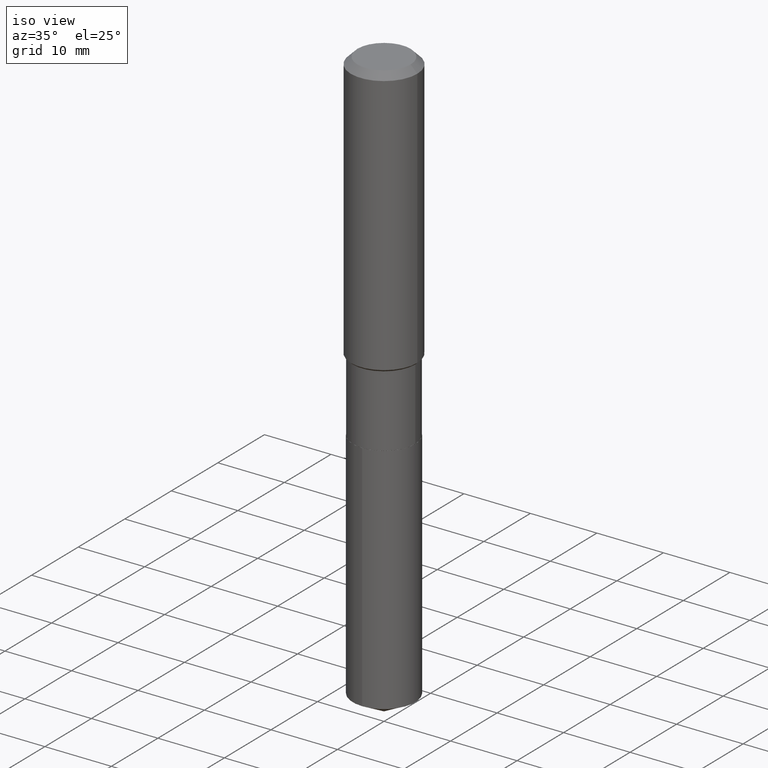
[diagram: clean part render]
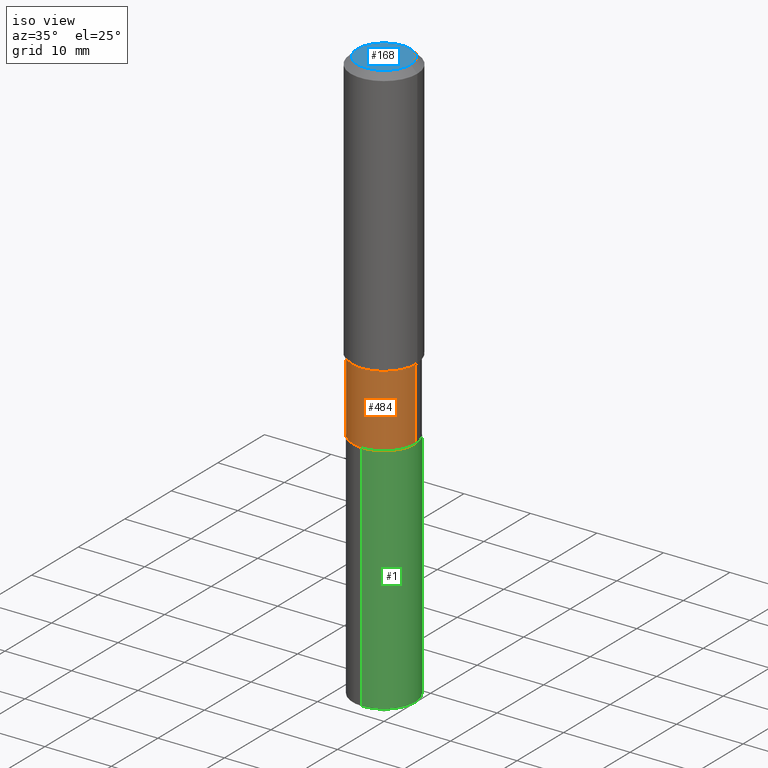
[diagram: same view with three faces highlighted in distinct colors, each labeled with its STEP entity id]
A machine part, iso view with three faces highlighted in distinct colors.
Their STEP definitions:

[orange] entity #484 — the highlighted cylindrical surface (partial cylindrical patch) has radius 4.7003 mm, axis along (-0, 0, 1).
#2 = DIRECTION ( 'NONE',  ( -2.445468806185136877E-29, 3.491481338843145188E-15, 1.000000000000000000 ) ) ;
#3 = FACE_OUTER_BOUND ( 'NONE', #143, .T. ) ;
#5 = AXIS2_PLACEMENT_3D ( 'NONE', #405, #36, #151 ) ;
#14 = DIRECTION ( 'NONE',  ( -2.445468806185136597E-29, 3.491481338843145583E-15, 1.000000000000000000 ) ) ;
#25 = CARTESIAN_POINT ( 'NONE',  ( -0.1850499999999999368, 1.314859332524064945E-15, -9.102489384516700747E-30 ) ) ;
#36 = DIRECTION ( 'NONE',  ( -2.445468806185136597E-29, 3.491481338843145583E-15, 1.000000000000000000 ) ) ;
#44 = CARTESIAN_POINT ( 'NONE',  ( 3.907859152283848022E-29, -5.579387179471346287E-15, -1.597999999999999643 ) ) ;
#52 = EDGE_CURVE ( 'NONE', #472, #109, #397, .T. ) ;
#65 = ORIENTED_EDGE ( 'NONE', *, *, #144, .T. ) ;
#70 = EDGE_CURVE ( 'NONE', #109, #279, #333, .T. ) ;
#109 = VERTEX_POINT ( 'NONE', #384 ) ;
#116 = DIRECTION ( 'NONE',  ( -2.445468806185136597E-29, 3.491481338843145583E-15, 1.000000000000000000 ) ) ;
#143 = EDGE_LOOP ( 'NONE', ( #362, #65, #399, #344 ) ) ;
#144 = EDGE_CURVE ( 'NONE', #472, #436, #345, .T. ) ;
#151 = DIRECTION ( 'NONE',  ( 1.000000000000000000, -6.982962677686267499E-15, 0.000000000000000000 ) ) ;
#189 = DIRECTION ( 'NONE',  ( -2.445468806185136877E-29, 3.491481338843145188E-15, 1.000000000000000000 ) ) ;
#191 = AXIS2_PLACEMENT_3D ( 'NONE', #256, #116, #255 ) ;
#205 = AXIS2_PLACEMENT_3D ( 'NONE', #44, #14, #420 ) ;
#245 = CARTESIAN_POINT ( 'NONE',  ( 0.1850499999999999090, -6.871584422977188194E-15, -1.597999999999999643 ) ) ;
#255 = DIRECTION ( 'NONE',  ( 1.000000000000000000, -6.982962677686267499E-15, 4.876176775795935793E-29 ) ) ;
#256 = CARTESIAN_POINT ( 'NONE',  ( 0.000000000000000000, 0.000000000000000000, 0.000000000000000000 ) ) ;
#279 = VERTEX_POINT ( 'NONE', #245 ) ;
#333 = CIRCLE ( 'NONE', #205, 0.1850499999999999090 ) ;
#344 = ORIENTED_EDGE ( 'NONE', *, *, #70, .F. ) ;
#345 = CIRCLE ( 'NONE', #5, 0.1850499999999999923 ) ;
#361 = CARTESIAN_POINT ( 'NONE',  ( -0.1850499999999999923, -5.006642205518390514E-15, -2.023099999999999898 ) ) ;
#362 = ORIENTED_EDGE ( 'NONE', *, *, #52, .F. ) ;
#370 = CARTESIAN_POINT ( 'NONE',  ( 0.1850499999999999368, -1.292197243505843287E-15, 9.023365123610376264E-30 ) ) ;
#384 = CARTESIAN_POINT ( 'NONE',  ( -0.1850499999999999090, -5.006642205518391303E-15, -1.597999999999999643 ) ) ;
#397 = LINE ( 'NONE', #25, #442 ) ;
#399 = ORIENTED_EDGE ( 'NONE', *, *, #401, .T. ) ;
#401 = EDGE_CURVE ( 'NONE', #436, #279, #418, .T. ) ;
#405 = CARTESIAN_POINT ( 'NONE',  ( 4.947427941793149075E-29, -7.063615896613566997E-15, -2.023099999999999898 ) ) ;
#410 = CYLINDRICAL_SURFACE ( 'NONE', #191, 0.1850499999999999368 ) ;
#413 = CARTESIAN_POINT ( 'NONE',  ( 0.1850499999999999923, -8.355813140119411270E-15, -2.023099999999999898 ) ) ;
#418 = LINE ( 'NONE', #370, #475 ) ;
#420 = DIRECTION ( 'NONE',  ( 1.000000000000000000, -6.982962677686265133E-15, 0.000000000000000000 ) ) ;
#436 = VERTEX_POINT ( 'NONE', #413 ) ;
#442 = VECTOR ( 'NONE', #2, 39.37007874015748143 ) ;
#472 = VERTEX_POINT ( 'NONE', #361 ) ;
#475 = VECTOR ( 'NONE', #189, 39.37007874015748143 ) ;
#484 = ADVANCED_FACE ( 'NONE', ( #3 ), #410, .T. ) ;

[blue] entity #168 — the highlighted planar face has unit normal (0, -0, -1).
#6 = AXIS2_PLACEMENT_3D ( 'NONE', #104, #395, #252 ) ;
#10 = PLANE ( 'NONE',  #28 ) ;
#28 = AXIS2_PLACEMENT_3D ( 'NONE', #95, #457, #304 ) ;
#31 = EDGE_LOOP ( 'NONE', ( #308, #482 ) ) ;
#55 = CARTESIAN_POINT ( 'NONE',  ( -0.1574800000000000089, 1.168406772637159618E-15, 3.855188123707939751E-18 ) ) ;
#95 = CARTESIAN_POINT ( 'NONE',  ( -4.713871149261283817E-47, 6.730158695841841775E-33, 1.927594061857935365E-18 ) ) ;
#104 = CARTESIAN_POINT ( 'NONE',  ( -9.427742298522567634E-47, 1.346031739168368355E-32, 3.855188123715870730E-18 ) ) ;
#113 = DIRECTION ( 'NONE',  ( 1.000000000000000000, -6.982962677686265922E-15, 4.876223630392693006E-29 ) ) ;
#168 = ADVANCED_FACE ( 'NONE', ( #465 ), #10, .F. ) ;
#173 = DIRECTION ( 'NONE',  ( -2.445468806185136597E-29, 3.491481338843145583E-15, 1.000000000000000000 ) ) ;
#182 = CARTESIAN_POINT ( 'NONE',  ( -9.427742298522567634E-47, 1.346031739168368355E-32, 3.855188123715870730E-18 ) ) ;
#210 = VERTEX_POINT ( 'NONE', #342 ) ;
#240 = AXIS2_PLACEMENT_3D ( 'NONE', #182, #173, #113 ) ;
#246 = VERTEX_POINT ( 'NONE', #55 ) ;
#252 = DIRECTION ( 'NONE',  ( 1.000000000000000000, -6.982962677686265922E-15, 4.876223630392693006E-29 ) ) ;
#260 = EDGE_CURVE ( 'NONE', #246, #210, #450, .T. ) ;
#302 = EDGE_CURVE ( 'NONE', #210, #246, #453, .T. ) ;
#304 = DIRECTION ( 'NONE',  ( -1.000000000000000000, 6.982962677686265922E-15, -4.876176775795935793E-29 ) ) ;
#308 = ORIENTED_EDGE ( 'NONE', *, *, #260, .T. ) ;
#342 = CARTESIAN_POINT ( 'NONE',  ( 0.1574800000000000089, -1.284169937930321189E-15, 3.855188123724205385E-18 ) ) ;
#395 = DIRECTION ( 'NONE',  ( -2.445468806185136597E-29, 3.491481338843145583E-15, 1.000000000000000000 ) ) ;
#450 = CIRCLE ( 'NONE', #6, 0.1574800000000000089 ) ;
#453 = CIRCLE ( 'NONE', #240, 0.1574800000000000089 ) ;
#457 = DIRECTION ( 'NONE',  ( 2.438088387897960049E-29, -3.491481338843145188E-15, -1.000000000000000000 ) ) ;
#465 = FACE_OUTER_BOUND ( 'NONE', #31, .T. ) ;
#482 = ORIENTED_EDGE ( 'NONE', *, *, #302, .T. ) ;

[green] entity #1 — the highlighted cylindrical surface (partial cylindrical patch) has radius 4.7003 mm, axis along (-0, 0, 1).
#1 = ADVANCED_FACE ( 'NONE', ( #170 ), #181, .T. ) ;
#13 = LINE ( 'NONE', #299, #365 ) ;
#20 = VERTEX_POINT ( 'NONE', #438 ) ;
#24 = EDGE_LOOP ( 'NONE', ( #359, #310, #61, #440 ) ) ;
#26 = DIRECTION ( 'NONE',  ( -2.445517431145861124E-29, 3.491411705131827095E-15, 1.000000000000000000 ) ) ;
#37 = VECTOR ( 'NONE', #179, 39.37007874015748143 ) ;
#61 = ORIENTED_EDGE ( 'NONE', *, *, #459, .F. ) ;
#79 = DIRECTION ( 'NONE',  ( -6.982962677686265133E-15, -1.000000000000000000, 2.952551195530141356E-15 ) ) ;
#85 = EDGE_CURVE ( 'NONE', #138, #466, #13, .T. ) ;
#128 = CARTESIAN_POINT ( 'NONE',  ( -1.292197243505793786E-15, -0.1850500000000070422, -2.023599999999999177 ) ) ;
#133 = DIRECTION ( 'NONE',  ( -2.445517431145861124E-29, 3.491411705131827095E-15, 1.000000000000000000 ) ) ;
#138 = VERTEX_POINT ( 'NONE', #483 ) ;
#141 = CARTESIAN_POINT ( 'NONE',  ( 1.314859332524148564E-15, 0.1850499999999929146, -2.023600000000000065 ) ) ;
#153 = CARTESIAN_POINT ( 'NONE',  ( 4.948650676196241876E-29, -7.065361637282988500E-15, -2.023599999999999621 ) ) ;
#170 = FACE_OUTER_BOUND ( 'NONE', #24, .T. ) ;
#175 = EDGE_CURVE ( 'NONE', #20, #138, #334, .T. ) ;
#178 = DIRECTION ( 'NONE',  ( -6.982962677686265133E-15, -1.000000000000000000, 2.952551195530141356E-15 ) ) ;
#179 = DIRECTION ( 'NONE',  ( -2.445517431145861124E-29, 3.491411705131826701E-15, 1.000000000000000000 ) ) ;
#181 = CYLINDRICAL_SURFACE ( 'NONE', #458, 0.1850499999999999923 ) ;
#230 = DIRECTION ( 'NONE',  ( -6.982962677686265133E-15, -1.000000000000000000, 2.952551195530141356E-15 ) ) ;
#231 = AXIS2_PLACEMENT_3D ( 'NONE', #273, #133, #230 ) ;
#242 = VERTEX_POINT ( 'NONE', #128 ) ;
#273 = CARTESIAN_POINT ( 'NONE',  ( 8.328128747852220188E-29, -1.189016850487806495E-14, -3.405507169671043499 ) ) ;
#276 = AXIS2_PLACEMENT_3D ( 'NONE', #153, #414, #79 ) ;
#297 = DIRECTION ( 'NONE',  ( -2.445517431145861124E-29, 3.491411705131826701E-15, 1.000000000000000000 ) ) ;
#299 = CARTESIAN_POINT ( 'NONE',  ( 1.314859332524114446E-15, 0.1850499999999929146, -2.023600000000000065 ) ) ;
#310 = ORIENTED_EDGE ( 'NONE', *, *, #85, .T. ) ;
#331 = CARTESIAN_POINT ( 'NONE',  ( -1.292197243505793786E-15, -0.1850500000000070422, -2.023599999999999177 ) ) ;
#334 = CIRCLE ( 'NONE', #231, 0.1850499999999999923 ) ;
#349 = EDGE_CURVE ( 'NONE', #20, #242, #471, .T. ) ;
#353 = CARTESIAN_POINT ( 'NONE',  ( 4.948650676196241876E-29, -7.065361637282988500E-15, -2.023599999999999621 ) ) ;
#359 = ORIENTED_EDGE ( 'NONE', *, *, #175, .T. ) ;
#365 = VECTOR ( 'NONE', #297, 39.37007874015748143 ) ;
#375 = CIRCLE ( 'NONE', #276, 0.1850499999999999923 ) ;
#414 = DIRECTION ( 'NONE',  ( -2.445517431145861124E-29, 3.491411705131827095E-15, 1.000000000000000000 ) ) ;
#438 = CARTESIAN_POINT ( 'NONE',  ( -1.292197243505760062E-15, -0.1850500000000118439, -3.405507169671043055 ) ) ;
#440 = ORIENTED_EDGE ( 'NONE', *, *, #349, .F. ) ;
#458 = AXIS2_PLACEMENT_3D ( 'NONE', #353, #26, #178 ) ;
#459 = EDGE_CURVE ( 'NONE', #242, #466, #375, .T. ) ;
#466 = VERTEX_POINT ( 'NONE', #141 ) ;
#471 = LINE ( 'NONE', #331, #37 ) ;
#483 = CARTESIAN_POINT ( 'NONE',  ( 1.314859332524147972E-15, 0.1850499999999881129, -3.405507169671043943 ) ) ;